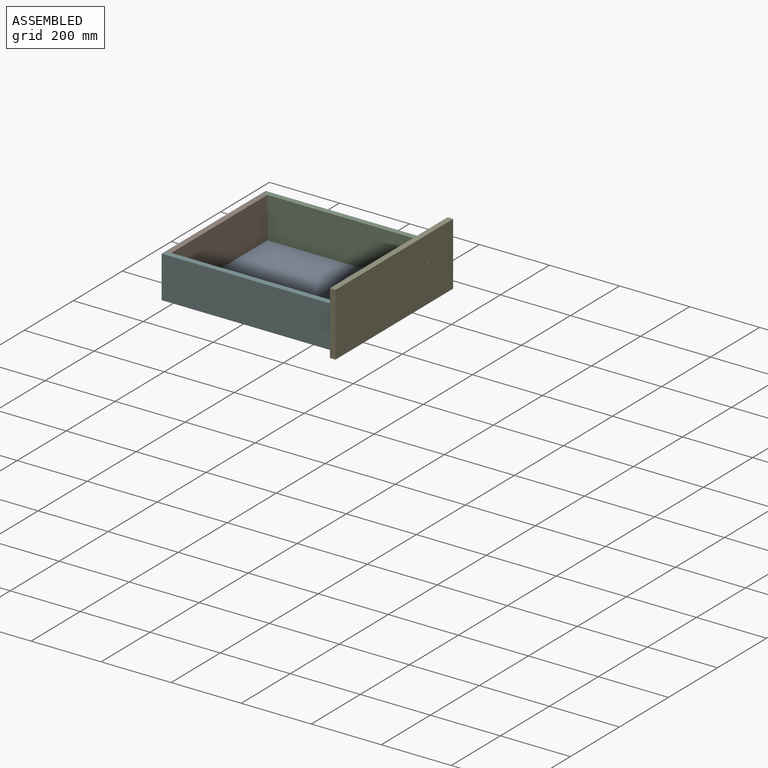
[diagram: assembled view]
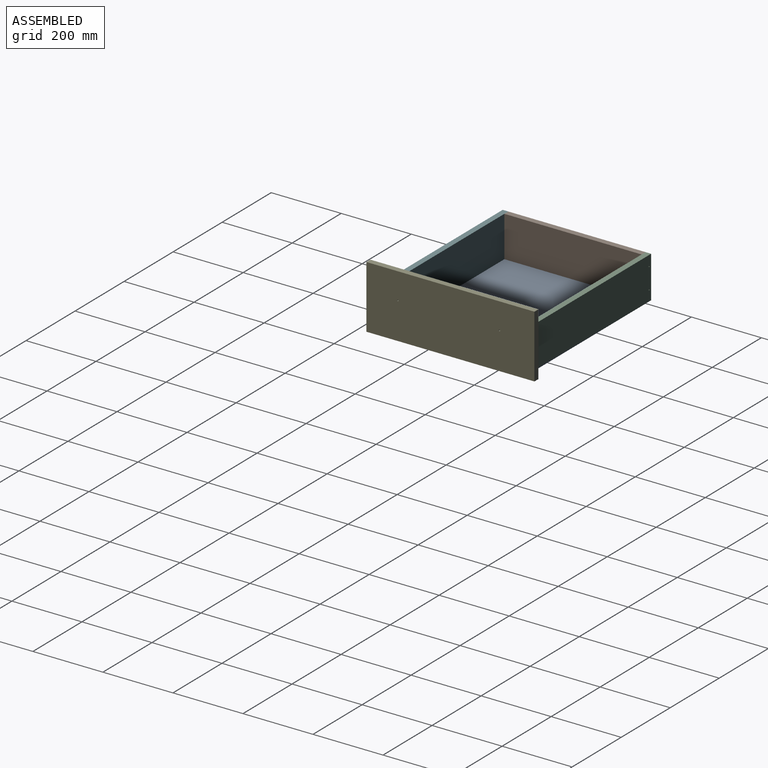
[diagram: assembled view, second angle]
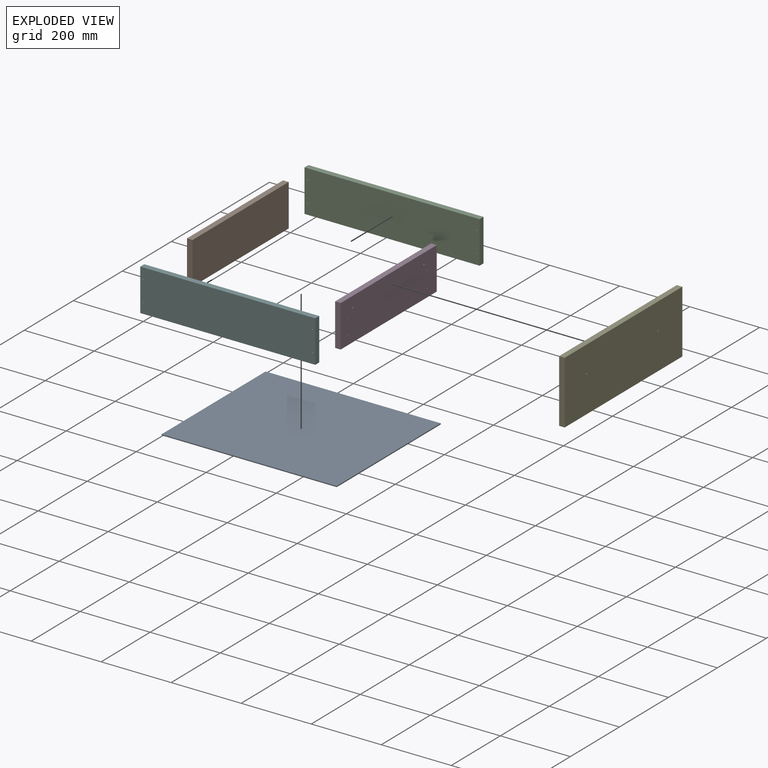
[diagram: exploded view]
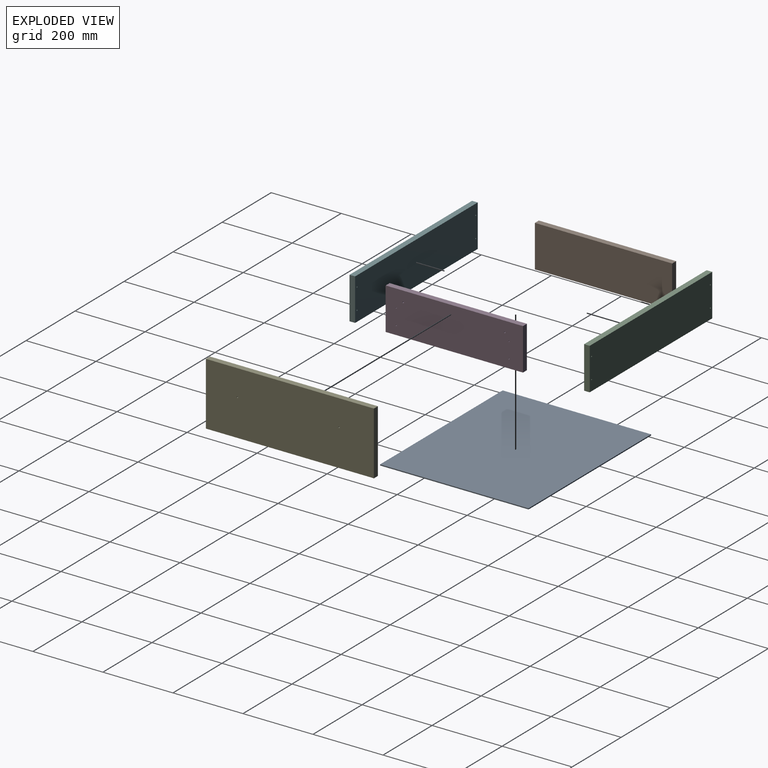
[diagram: exploded view, second angle]
ASSEMBLY  parts=6 mates=5
PART A: 6 faces, bbox 424x3x500 mm
  f0: plane 424x3mm, normal (0,0,1), area 1272mm2, adj f1,f3,f4,f5
  f1: plane 500x3mm, normal (-1,0,0), area 1500mm2, adj f0,f2,f4,f5
  f2: plane 424x3mm, normal (0,0,-1), area 1272mm2, adj f1,f3,f4,f5
  f3: plane 500x3mm, normal (1,0,0), area 1500mm2, adj f0,f2,f4,f5
  f4: plane 500x424mm, normal (0,-1,0), area 212000mm2, adj f0,f1,f2,f3
  f5: plane 500x424mm, normal (0,1,0), area 212000mm2, adj f0,f1,f2,f3
PART B: 6 faces, bbox 392x16x120 mm
  f0: plane 392x16mm, normal (0,0,1), area 6272mm2, adj f1,f3,f4,f5
  f1: plane 120x16mm, normal (-1,0,0), area 1920mm2, adj f0,f2,f4,f5
  f2: plane 392x16mm, normal (0,0,-1), area 6272mm2, adj f1,f3,f4,f5
  f3: plane 120x16mm, normal (1,0,0), area 1920mm2, adj f0,f2,f4,f5
  f4: plane 392x120mm, normal (0,-1,0), area 47040mm2, adj f0,f1,f2,f3
  f5: plane 392x120mm, normal (0,1,0), area 47040mm2, adj f0,f1,f2,f3
PART C: 10 faces, bbox 500x16x120 mm
  f0: plane 500x16mm, normal (0,0,1), area 8000mm2, adj f1,f7,f8,f9
  f1: plane 120x16mm, normal (-1,0,0), area 1920mm2, adj f0,f2,f8,f9
  f2: plane 500x16mm, normal (0,0,-1), area 8000mm2, adj f1,f7,f8,f9
  f3: cylinder r=1.5mm len=16mm, axis (0,1,0), area 150.8mm2, adj f8,f9
  f4: cylinder r=1.5mm len=16mm, axis (0,1,0), area 150.8mm2, adj f8,f9
  f5: cylinder r=1.5mm len=16mm, axis (0,1,0), area 150.8mm2, adj f8,f9
  f6: cylinder r=1.5mm len=16mm, axis (0,1,0), area 150.8mm2, adj f8,f9
  f7: plane 120x16mm, normal (1,0,0), area 1920mm2, adj f0,f2,f8,f9
  f8: plane 500x120mm, normal (0,-1,0), area 59971.7mm2, adj f0,f1,f2,f3,f4,f5,f6,f7
  f9: plane 500x120mm, normal (0,1,0), area 59971.7mm2, adj f0,f1,f2,f3,f4,f5,f6,f7
PART D: 12 faces, bbox 392x16x120 mm
  f0: plane 392x16mm, normal (0,0,1), area 6272mm2, adj f1,f9,f10,f11
  f1: plane 120x16mm, normal (-1,0,0), area 1920mm2, adj f0,f2,f10,f11
  f2: plane 392x16mm, normal (0,0,-1), area 6272mm2, adj f1,f9,f10,f11
  f3: cylinder r=1.5mm len=16mm, axis (0,1,0), area 150.8mm2, adj f10,f11
  f4: cylinder r=1.5mm len=16mm, axis (0,1,0), area 150.8mm2, adj f10,f11
  f5: cylinder r=1.5mm len=16mm, axis (0,1,0), area 150.8mm2, adj f10,f11
  f6: cylinder r=1.5mm len=16mm, axis (0,1,0), area 150.8mm2, adj f10,f11
  f7: cylinder r=2mm len=16mm, axis (0,1,0), area 201.1mm2, adj f10,f11
  f8: cylinder r=2mm len=16mm, axis (0,1,0), area 201.1mm2, adj f10,f11
  f9: plane 120x16mm, normal (1,0,0), area 1920mm2, adj f0,f2,f10,f11
  f10: plane 392x120mm, normal (0,-1,0), area 46986.6mm2, adj f0,f1,f2,f3,f4,f5,f6,f7
  f11: plane 392x120mm, normal (0,1,0), area 46986.6mm2, adj f0,f1,f2,f3,f4,f5,f6,f7
PART E: 8 faces, bbox 480x16x180 mm
  f0: plane 480x16mm, normal (0,0,1), area 7680mm2, adj f1,f5,f6,f7
  f1: plane 180x16mm, normal (-1,0,0), area 2880mm2, adj f0,f2,f6,f7
  f2: plane 480x16mm, normal (0,0,-1), area 7680mm2, adj f1,f5,f6,f7
  f3: cylinder r=2mm len=16mm, axis (0,1,0), area 201.1mm2, adj f6,f7
  f4: cylinder r=2mm len=16mm, axis (0,1,0), area 201.1mm2, adj f6,f7
  f5: plane 180x16mm, normal (1,0,0), area 2880mm2, adj f0,f2,f6,f7
  f6: plane 480x180mm, normal (0,-1,0), area 86374.9mm2, adj f0,f1,f2,f3,f4,f5
  f7: plane 480x180mm, normal (0,1,0), area 86374.9mm2, adj f0,f1,f2,f3,f4,f5
PART F: same geometry as C
PLACE A rot(axis=(-0.58,-0.58,0.58),120deg) t=(-437.63,-322.33,-352.49)mm
PLACE B rot(axis=(0,0,-1),90deg) t=(-781.45,-291.21,-279.65)mm
PLACE C t=(-576.23,-95.2,-265.66)mm
PLACE D rot(axis=(0,0,1),90deg) t=(-297.45,-307.18,-279.65)mm
PLACE E rot(axis=(0,0,-1),90deg) t=(-281.45,-343.95,-240.67)mm
PLACE F t=(-576.23,-503.2,-265.66)mm
MATE fastened C.f8 <-> B.f1  axis (0,-1,0) through (-789.45,-103.2,-353.99)mm
MATE fastened D.f9 <-> C.f8  axis (0,1,0) through (-289.45,-103.2,-233.99)mm
MATE fastened F.f9 <-> B.f3  axis (0,1,0) through (-789.45,-495.2,-353.99)mm
MATE fastened A.f5 <-> F.f2  axis (0,0,-1) through (-789.45,-511.2,-353.99)mm
MATE fastened E.f6 <-> D.f10  axis (-1,0,0) through (-289.45,-299.2,-358.99)mm
